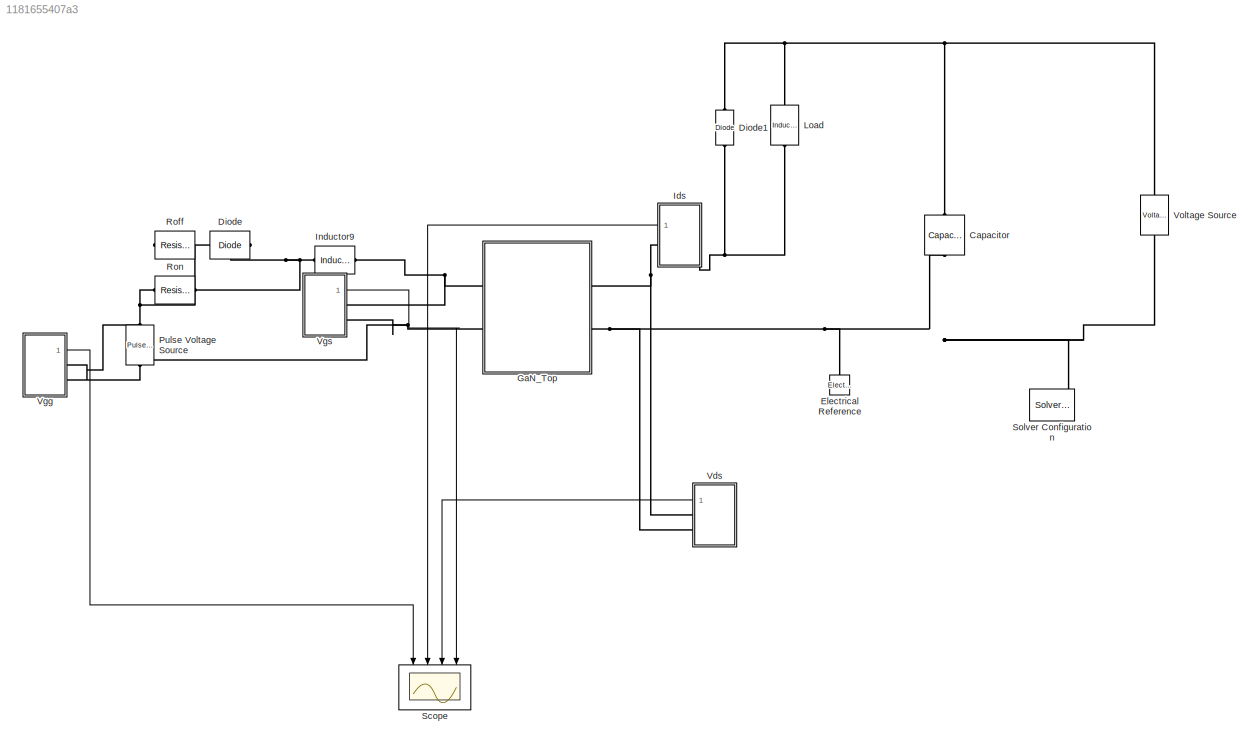
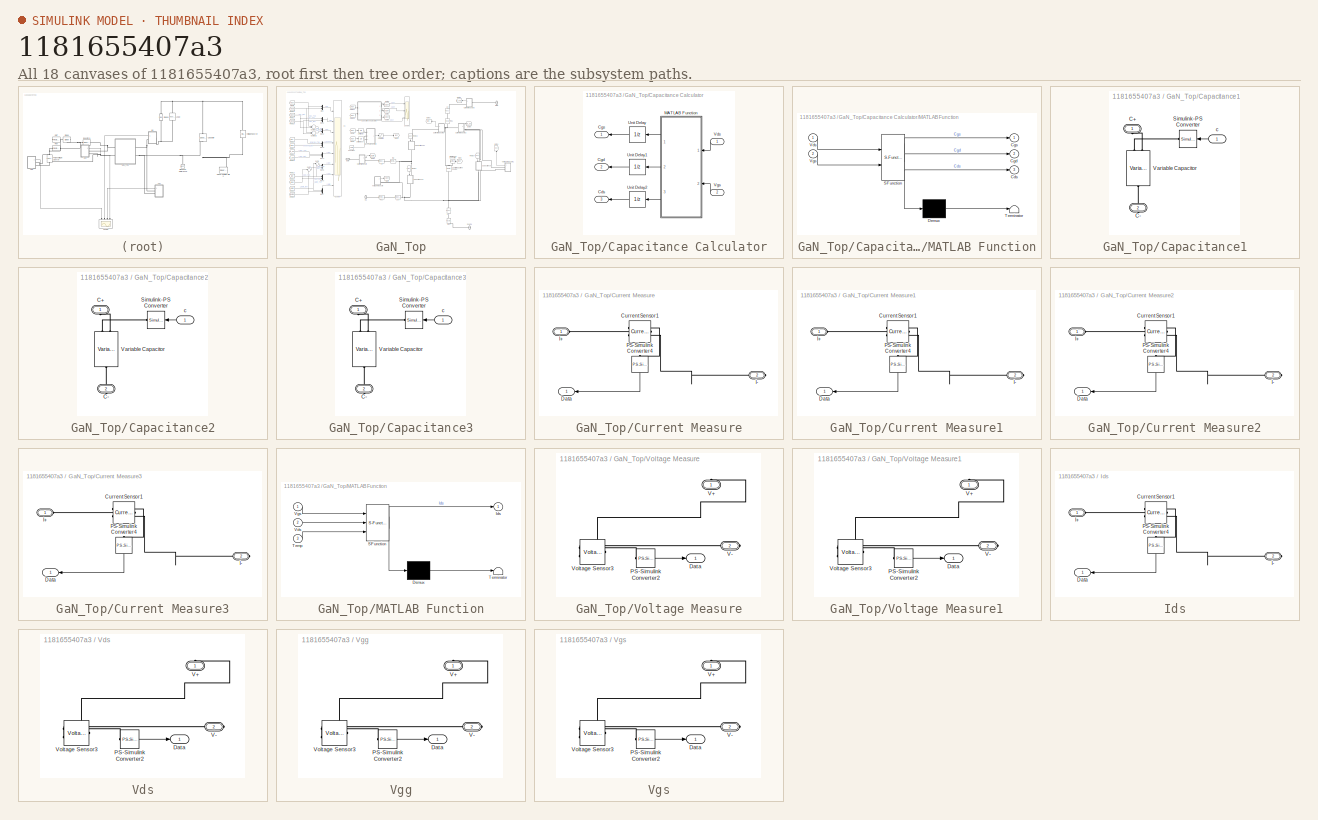
[diagram: thumbnail index - all 18 canvases of the model, root first then tree order]
MODEL slx_1181655407a3
KIND model
CONFIG AbsTol = auto
CONFIG FixedStep = 5e-13
CONFIG MaxStep = auto
CONFIG MinStep = auto
CONFIG RelTol = 1e-3
CONFIG SampleTimeConstraint = Unconstrained
CONFIG Solver = FixedStepAuto
CONFIG SolverMode = Auto
CONFIG SolverName = FixedStepAuto
CONFIG StartTime = 0.0
CONFIG StopTime = 1.5e-6
BLOCK [Reference] Capacitor  REF=elec_lib/Passive Devices/Capacitor
  Ports = [0, 0, 0, 0, 0, 1, 1]
  SourceBlock = elec_lib/Passive Devices/Capacitor
  SourceType = Capacitor
BLOCK [Reference] Diode  REF=elec_lib/Semiconductor
Devices/Diode
  Ports = [0, 0, 0, 0, 0, 1, 1]
  SourceBlock = elec_lib/Semiconductor\nDevices/Diode
  SourceType = Diode
BLOCK [Reference] Diode1  REF=elec_lib/Semiconductor
Devices/Diode
  Ports = [0, 0, 0, 0, 0, 1, 1]
  SourceBlock = elec_lib/Semiconductor\nDevices/Diode
  SourceType = Diode
BLOCK [Reference] Electrical Reference  REF=fl_lib/Electrical/Electrical Elements/Electrical Reference
  Ports = [0, 0, 0, 0, 0, 1]
  SourceBlock = fl_lib/Electrical/Electrical Elements/Electrical Reference
  SourceType = Electrical Reference
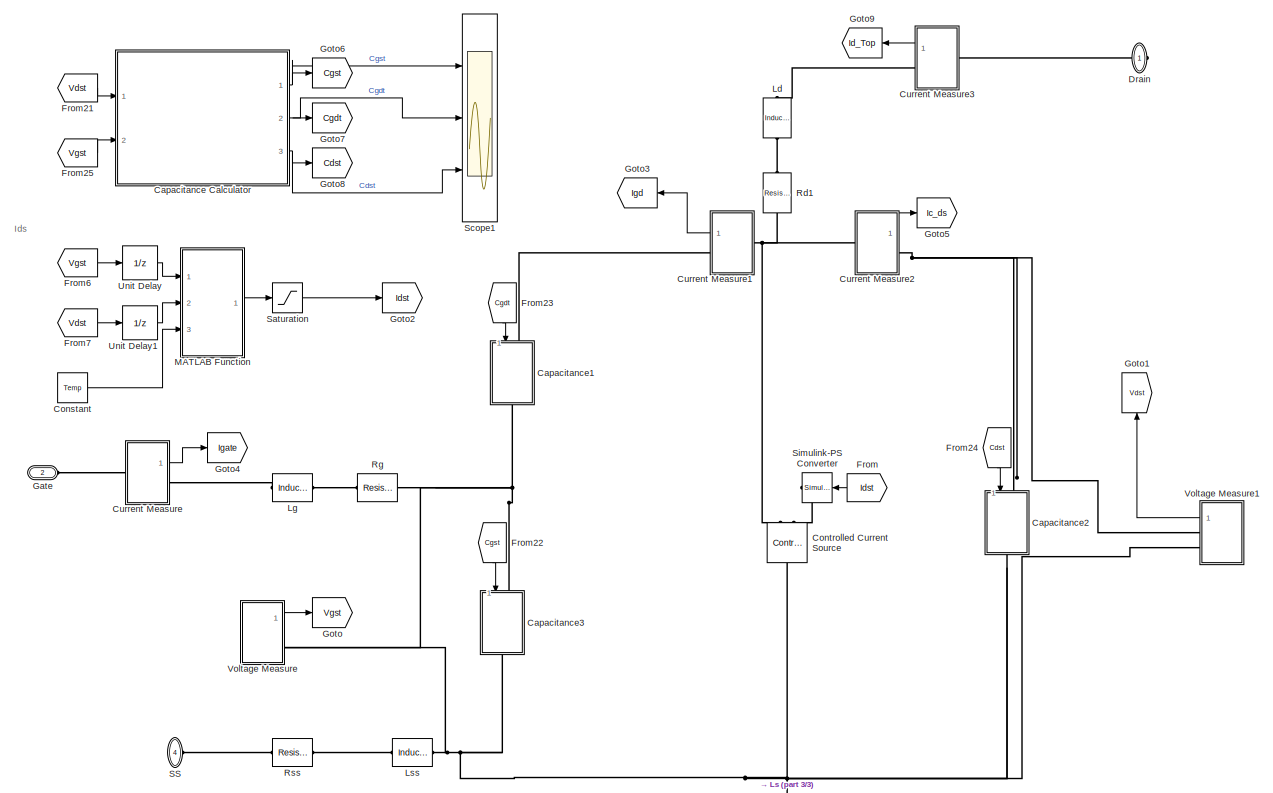
[diagram: GaN_Top - part 1/3, most of the canvas]
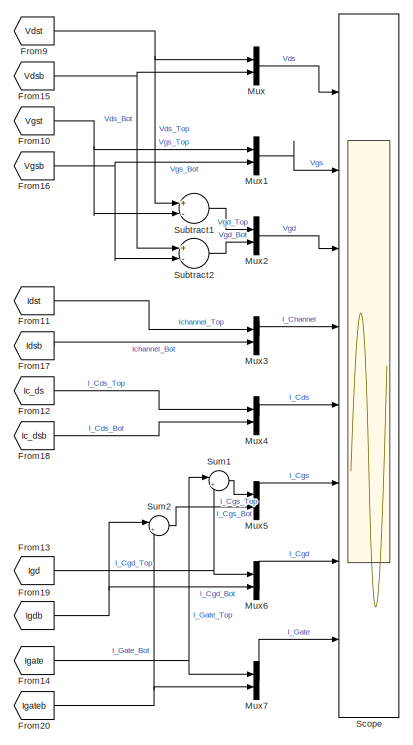
[diagram: GaN_Top - part 2/3, middle left region]
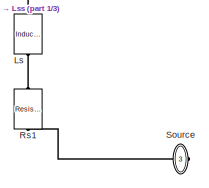
[diagram: GaN_Top - part 3/3, bottom right region]
BLOCK [SubSystem] GaN_Top
  Ports = [0, 0, 0, 0, 0, 2, 2]
  RequestExecContextInheritance = off
  Variant = off
BLOCK [SubSystem] GaN_Top/Capacitance Calculator
  Ports = [2, 3]
  RequestExecContextInheritance = off
  Variant = off
BLOCK [Outport] GaN_Top/Capacitance Calculator/Cds
  IconDisplay = Port number
  Port = 3
BLOCK [Outport] GaN_Top/Capacitance Calculator/Cgd
  IconDisplay = Port number
  Port = 2
BLOCK [Outport] GaN_Top/Capacitance Calculator/Cgs
  IconDisplay = Port number
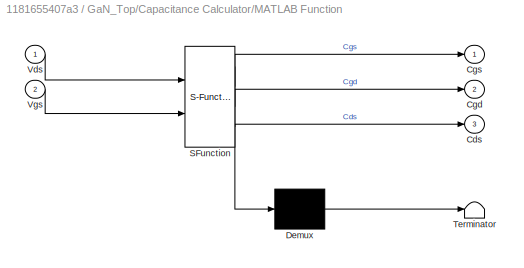
BLOCK [SubSystem] GaN_Top/Capacitance Calculator/MATLAB Function
  ErrorFcn = Stateflow.Translate.translate
  PermitHierarchicalResolution = ExplicitOnly
  Ports = [2, 3]
  RequestExecContextInheritance = off
  SFBlockType = MATLAB Function
  TreatAsAtomicUnit = on
  Variant = off
BLOCK [Demux] GaN_Top/Capacitance Calculator/MATLAB Function/ Demux 
  Outputs = 1
  Ports = [1, 1]
BLOCK [S-Function] GaN_Top/Capacitance Calculator/MATLAB Function/ SFunction 
  EnableBusSupport = on
  FunctionName = sf_sfun
  PortCounts = [2 4]
  Ports = [2, 4]
  SFunctionDeploymentMode = off
  Tag = Stateflow S-Function DoublePulseTest 3
BLOCK [Terminator] GaN_Top/Capacitance Calculator/MATLAB Function/ Terminator 
BLOCK [Outport] GaN_Top/Capacitance Calculator/MATLAB Function/Cds
  IconDisplay = Port number
  Port = 3
BLOCK [Outport] GaN_Top/Capacitance Calculator/MATLAB Function/Cgd
  IconDisplay = Port number
  Port = 2
BLOCK [Outport] GaN_Top/Capacitance Calculator/MATLAB Function/Cgs
  IconDisplay = Port number
BLOCK [Inport] GaN_Top/Capacitance Calculator/MATLAB Function/Vds
  IconDisplay = Port number
BLOCK [Inport] GaN_Top/Capacitance Calculator/MATLAB Function/Vgs
  IconDisplay = Port number
  Port = 2
BLOCK [UnitDelay] GaN_Top/Capacitance Calculator/Unit Delay
  InitialCondition = 258e-12
  InputProcessing = Elements as channels (sample based)
  SampleTime = -1
BLOCK [UnitDelay] GaN_Top/Capacitance Calculator/Unit Delay1
  InitialCondition = 63e-12
  InputProcessing = Elements as channels (sample based)
  SampleTime = -1
BLOCK [UnitDelay] GaN_Top/Capacitance Calculator/Unit Delay2
  InitialCondition = 2e-12
  InputProcessing = Elements as channels (sample based)
  SampleTime = -1
BLOCK [Inport] GaN_Top/Capacitance Calculator/Vds
  IconDisplay = Port number
BLOCK [Inport] GaN_Top/Capacitance Calculator/Vgs
  IconDisplay = Port number
  Port = 2
BLOCK [SubSystem] GaN_Top/Capacitance1
  Ports = [1, 0, 0, 0, 0, 1, 1]
  RequestExecContextInheritance = off
  Variant = off
BLOCK [PMIOPort] GaN_Top/Capacitance1/C+
  Port = 1
  Side = Left
BLOCK [PMIOPort] GaN_Top/Capacitance1/C-
  Port = 2
  Side = Right
BLOCK [Reference] GaN_Top/Capacitance1/Simulink-PS Converter  REF=nesl_utility/Simulink-PS
Converter
  Ports = [1, 0, 0, 0, 0, 0, 1]
  SourceBlock = nesl_utility/Simulink-PS\nConverter
  SourceType = Simulink-PS\nConverter
BLOCK [Reference] GaN_Top/Capacitance1/Variable Capacitor  REF=elec_lib/Passive Devices/Variable Capacitor
  Ports = [0, 0, 0, 0, 0, 2, 1]
  SourceBlock = elec_lib/Passive Devices/Variable Capacitor
  SourceType = Variable Capacitor
BLOCK [Inport] GaN_Top/Capacitance1/c
  IconDisplay = Port number
BLOCK [SubSystem] GaN_Top/Capacitance2
  Ports = [1, 0, 0, 0, 0, 1, 1]
  RequestExecContextInheritance = off
  Variant = off
BLOCK [PMIOPort] GaN_Top/Capacitance2/C+
  Port = 1
  Side = Left
BLOCK [PMIOPort] GaN_Top/Capacitance2/C-
  Port = 2
  Side = Right
BLOCK [Reference] GaN_Top/Capacitance2/Simulink-PS Converter  REF=nesl_utility/Simulink-PS
Converter
  Ports = [1, 0, 0, 0, 0, 0, 1]
  SourceBlock = nesl_utility/Simulink-PS\nConverter
  SourceType = Simulink-PS\nConverter
BLOCK [Reference] GaN_Top/Capacitance2/Variable Capacitor  REF=elec_lib/Passive Devices/Variable Capacitor
  Ports = [0, 0, 0, 0, 0, 2, 1]
  SourceBlock = elec_lib/Passive Devices/Variable Capacitor
  SourceType = Variable Capacitor
BLOCK [Inport] GaN_Top/Capacitance2/c
  IconDisplay = Port number
BLOCK [SubSystem] GaN_Top/Capacitance3
  Ports = [1, 0, 0, 0, 0, 1, 1]
  RequestExecContextInheritance = off
  Variant = off
BLOCK [PMIOPort] GaN_Top/Capacitance3/C+
  Port = 1
  Side = Left
BLOCK [PMIOPort] GaN_Top/Capacitance3/C-
  Port = 2
  Side = Right
BLOCK [Reference] GaN_Top/Capacitance3/Simulink-PS Converter  REF=nesl_utility/Simulink-PS
Converter
  Ports = [1, 0, 0, 0, 0, 0, 1]
  SourceBlock = nesl_utility/Simulink-PS\nConverter
  SourceType = Simulink-PS\nConverter
BLOCK [Reference] GaN_Top/Capacitance3/Variable Capacitor  REF=elec_lib/Passive Devices/Variable Capacitor
  Ports = [0, 0, 0, 0, 0, 2, 1]
  SourceBlock = elec_lib/Passive Devices/Variable Capacitor
  SourceType = Variable Capacitor
BLOCK [Inport] GaN_Top/Capacitance3/c
  IconDisplay = Port number
BLOCK [Constant] GaN_Top/Constant
  Value = Temp
BLOCK [Reference] GaN_Top/Controlled Current Source  REF=fl_lib/Electrical/Electrical Sources/Controlled Current
Source
  Ports = [0, 0, 0, 0, 0, 1, 2]
  SourceBlock = fl_lib/Electrical/Electrical Sources/Controlled Current\nSource
  SourceType = Controlled Current\nSource
BLOCK [SubSystem] GaN_Top/Current Measure
  Ports = [0, 1, 0, 0, 0, 1, 1]
  RequestExecContextInheritance = off
  Variant = off
BLOCK [Reference] GaN_Top/Current Measure/Current Sensor1  REF=fl_lib/Electrical/Electrical Sensors/Current Sensor
  Ports = [0, 0, 0, 0, 0, 1, 2]
  SourceBlock = fl_lib/Electrical/Electrical Sensors/Current Sensor
  SourceType = Current Sensor
BLOCK [Outport] GaN_Top/Current Measure/Data
  IconDisplay = Port number
BLOCK [PMIOPort] GaN_Top/Current Measure/I+
  Port = 1
  Side = Left
BLOCK [PMIOPort] GaN_Top/Current Measure/I-
  Port = 2
  Side = Right
BLOCK [Reference] GaN_Top/Current Measure/PS-Simulink Converter4  REF=nesl_utility/PS-Simulink
Converter
  Ports = [0, 1, 0, 0, 0, 1]
  SourceBlock = nesl_utility/PS-Simulink\nConverter
  SourceType = PS-Simulink\nConverter
BLOCK [SubSystem] GaN_Top/Current Measure1
  Ports = [0, 1, 0, 0, 0, 1, 1]
  RequestExecContextInheritance = off
  Variant = off
BLOCK [Reference] GaN_Top/Current Measure1/Current Sensor1  REF=fl_lib/Electrical/Electrical Sensors/Current Sensor
  Ports = [0, 0, 0, 0, 0, 1, 2]
  SourceBlock = fl_lib/Electrical/Electrical Sensors/Current Sensor
  SourceType = Current Sensor
BLOCK [Outport] GaN_Top/Current Measure1/Data
  IconDisplay = Port number
BLOCK [PMIOPort] GaN_Top/Current Measure1/I+
  Port = 1
  Side = Left
BLOCK [PMIOPort] GaN_Top/Current Measure1/I-
  Port = 2
  Side = Right
BLOCK [Reference] GaN_Top/Current Measure1/PS-Simulink Converter4  REF=nesl_utility/PS-Simulink
Converter
  Ports = [0, 1, 0, 0, 0, 1]
  SourceBlock = nesl_utility/PS-Simulink\nConverter
  SourceType = PS-Simulink\nConverter
BLOCK [SubSystem] GaN_Top/Current Measure2
  Ports = [0, 1, 0, 0, 0, 1, 1]
  RequestExecContextInheritance = off
  Variant = off
BLOCK [Reference] GaN_Top/Current Measure2/Current Sensor1  REF=fl_lib/Electrical/Electrical Sensors/Current Sensor
  Ports = [0, 0, 0, 0, 0, 1, 2]
  SourceBlock = fl_lib/Electrical/Electrical Sensors/Current Sensor
  SourceType = Current Sensor
BLOCK [Outport] GaN_Top/Current Measure2/Data
  IconDisplay = Port number
BLOCK [PMIOPort] GaN_Top/Current Measure2/I+
  Port = 1
  Side = Left
BLOCK [PMIOPort] GaN_Top/Current Measure2/I-
  Port = 2
  Side = Right
BLOCK [Reference] GaN_Top/Current Measure2/PS-Simulink Converter4  REF=nesl_utility/PS-Simulink
Converter
  Ports = [0, 1, 0, 0, 0, 1]
  SourceBlock = nesl_utility/PS-Simulink\nConverter
  SourceType = PS-Simulink\nConverter
BLOCK [SubSystem] GaN_Top/Current Measure3
  Ports = [0, 1, 0, 0, 0, 1, 1]
  RequestExecContextInheritance = off
  Variant = off
BLOCK [Reference] GaN_Top/Current Measure3/Current Sensor1  REF=fl_lib/Electrical/Electrical Sensors/Current Sensor
  Ports = [0, 0, 0, 0, 0, 1, 2]
  SourceBlock = fl_lib/Electrical/Electrical Sensors/Current Sensor
  SourceType = Current Sensor
BLOCK [Outport] GaN_Top/Current Measure3/Data
  IconDisplay = Port number
BLOCK [PMIOPort] GaN_Top/Current Measure3/I+
  Port = 1
  Side = Left
BLOCK [PMIOPort] GaN_Top/Current Measure3/I-
  Port = 2
  Side = Right
BLOCK [Reference] GaN_Top/Current Measure3/PS-Simulink Converter4  REF=nesl_utility/PS-Simulink
Converter
  Ports = [0, 1, 0, 0, 0, 1]
  SourceBlock = nesl_utility/PS-Simulink\nConverter
  SourceType = PS-Simulink\nConverter
BLOCK [PMIOPort] GaN_Top/Drain
  Port = 1
  Side = Right
BLOCK [From] GaN_Top/From
  GotoTag = Idst
  TagVisibility = global
BLOCK [From] GaN_Top/From10
  GotoTag = Vgst
  TagVisibility = global
BLOCK [From] GaN_Top/From11
  GotoTag = Idst
  TagVisibility = global
BLOCK [From] GaN_Top/From12
  GotoTag = Ic_ds
BLOCK [From] GaN_Top/From13
  GotoTag = Igd
BLOCK [From] GaN_Top/From14
  GotoTag = Igate
BLOCK [From] GaN_Top/From15
  GotoTag = Vdsb
BLOCK [From] GaN_Top/From16
  GotoTag = Vgsb
BLOCK [From] GaN_Top/From17
  GotoTag = Idsb
BLOCK [From] GaN_Top/From18
  GotoTag = Ic_dsb
BLOCK [From] GaN_Top/From19
  GotoTag = Igdb
BLOCK [From] GaN_Top/From20
  GotoTag = Igateb
BLOCK [From] GaN_Top/From21
  GotoTag = Vdst
  TagVisibility = global
BLOCK [From] GaN_Top/From22
  GotoTag = Cgst
BLOCK [From] GaN_Top/From23
  GotoTag = Cgdt
BLOCK [From] GaN_Top/From24
  GotoTag = Cdst
BLOCK [From] GaN_Top/From25
  GotoTag = Vgst
  TagVisibility = global
BLOCK [From] GaN_Top/From6
  GotoTag = Vgst
  TagVisibility = global
BLOCK [From] GaN_Top/From7
  GotoTag = Vdst
  TagVisibility = global
BLOCK [From] GaN_Top/From9
  GotoTag = Vdst
  TagVisibility = global
BLOCK [PMIOPort] GaN_Top/Gate
  Port = 2
  Side = Left
BLOCK [Goto] GaN_Top/Goto
  GotoTag = Vgst
  TagVisibility = global
BLOCK [Goto] GaN_Top/Goto1
  GotoTag = Vdst
  TagVisibility = global
BLOCK [Goto] GaN_Top/Goto2
  GotoTag = Idst
  TagVisibility = global
BLOCK [Goto] GaN_Top/Goto3
  GotoTag = Igd
BLOCK [Goto] GaN_Top/Goto4
  GotoTag = Igate
BLOCK [Goto] GaN_Top/Goto5
  GotoTag = Ic_ds
BLOCK [Goto] GaN_Top/Goto6
  GotoTag = Cgst
BLOCK [Goto] GaN_Top/Goto7
  GotoTag = Cgdt
BLOCK [Goto] GaN_Top/Goto8
  GotoTag = Cdst
BLOCK [Goto] GaN_Top/Goto9
  GotoTag = Id_Top
BLOCK [Reference] GaN_Top/Ld  REF=elec_lib/Passive Devices/Inductor
  Ports = [0, 0, 0, 0, 0, 1, 1]
  SourceBlock = elec_lib/Passive Devices/Inductor
  SourceType = Inductor
BLOCK [Reference] GaN_Top/Lg  REF=elec_lib/Passive Devices/Inductor
  Ports = [0, 0, 0, 0, 0, 1, 1]
  SourceBlock = elec_lib/Passive Devices/Inductor
  SourceType = Inductor
BLOCK [Reference] GaN_Top/Ls  REF=elec_lib/Passive Devices/Inductor
  Ports = [0, 0, 0, 0, 0, 1, 1]
  SourceBlock = elec_lib/Passive Devices/Inductor
  SourceType = Inductor
BLOCK [Reference] GaN_Top/Lss  REF=elec_lib/Passive Devices/Inductor
  Ports = [0, 0, 0, 0, 0, 1, 1]
  SourceBlock = elec_lib/Passive Devices/Inductor
  SourceType = Inductor
BLOCK [SubSystem] GaN_Top/MATLAB Function
  ErrorFcn = Stateflow.Translate.translate
  PermitHierarchicalResolution = ExplicitOnly
  Ports = [3, 1]
  RequestExecContextInheritance = off
  SFBlockType = MATLAB Function
  TreatAsAtomicUnit = on
  Variant = off
BLOCK [Demux] GaN_Top/MATLAB Function/ Demux 
  Outputs = 1
  Ports = [1, 1]
BLOCK [S-Function] GaN_Top/MATLAB Function/ SFunction 
  EnableBusSupport = on
  FunctionName = sf_sfun
  PortCounts = [3 2]
  Ports = [3, 2]
  SFunctionDeploymentMode = off
  Tag = Stateflow S-Function DoublePulseTest 2
BLOCK [Terminator] GaN_Top/MATLAB Function/ Terminator 
BLOCK [Outport] GaN_Top/MATLAB Function/Ids
  IconDisplay = Port number
BLOCK [Inport] GaN_Top/MATLAB Function/Temp
  IconDisplay = Port number
  Port = 3
BLOCK [Inport] GaN_Top/MATLAB Function/Vds
  IconDisplay = Port number
  Port = 2
BLOCK [Inport] GaN_Top/MATLAB Function/Vgs
  IconDisplay = Port number
BLOCK [Mux] GaN_Top/Mux
  DisplayOption = bar
  Inputs = 2
  Ports = [2, 1]
BLOCK [Mux] GaN_Top/Mux1
  DisplayOption = bar
  Inputs = 2
  Ports = [2, 1]
BLOCK [Mux] GaN_Top/Mux2
  DisplayOption = bar
  Inputs = 2
  Ports = [2, 1]
BLOCK [Mux] GaN_Top/Mux3
  DisplayOption = bar
  Inputs = 2
  Ports = [2, 1]
BLOCK [Mux] GaN_Top/Mux4
  DisplayOption = bar
  Inputs = 2
  Ports = [2, 1]
BLOCK [Mux] GaN_Top/Mux5
  DisplayOption = bar
  Inputs = 2
  Ports = [2, 1]
BLOCK [Mux] GaN_Top/Mux6
  DisplayOption = bar
  Inputs = 2
  Ports = [2, 1]
BLOCK [Mux] GaN_Top/Mux7
  DisplayOption = bar
  Inputs = 2
  Ports = [2, 1]
BLOCK [Reference] GaN_Top/Rd1  REF=elec_lib/Passive Devices/Resistor
  Ports = [0, 0, 0, 0, 0, 1, 1]
  SourceBlock = elec_lib/Passive Devices/Resistor
  SourceType = Resistor
BLOCK [Reference] GaN_Top/Rg  REF=elec_lib/Passive Devices/Resistor
  Ports = [0, 0, 0, 0, 0, 1, 1]
  SourceBlock = elec_lib/Passive Devices/Resistor
  SourceType = Resistor
BLOCK [Reference] GaN_Top/Rs1  REF=elec_lib/Passive Devices/Resistor
  Ports = [0, 0, 0, 0, 0, 1, 1]
  SourceBlock = elec_lib/Passive Devices/Resistor
  SourceType = Resistor
BLOCK [Reference] GaN_Top/Rss  REF=elec_lib/Passive Devices/Resistor
  Ports = [0, 0, 0, 0, 0, 1, 1]
  SourceBlock = elec_lib/Passive Devices/Resistor
  SourceType = Resistor
BLOCK [PMIOPort] GaN_Top/SS
  Port = 4
  Side = Left
BLOCK [Saturate] GaN_Top/Saturation
  InputPortMap = u0
  LowerLimit = -200
  Ports = [1, 1]
  UpperLimit = 200
BLOCK [Scope] GaN_Top/Scope
  NumInputPorts = 8
  Ports = [8]
  ScopeSpecificationString = Simulink.scopes.TimeScopeBlockCfg('CurrentConfiguration', extmgr.ConfigurationSet(extmgr.Configuration('Core','General UI',true,'FigureColor',[0 0 0]),extmgr.Configuration('Core','Source UI',true),extmgr.Configuration('Sources','WiredSimulink',true,'DataLoggingVariableName','ScopeData2'),extmgr.Configuration('Visuals','Time Domain',true,'SerializedDisplays',{struct('MinYLimReal','-71.63388','MaxYL...<+6043ch>
BLOCK [Scope] GaN_Top/Scope1
  NumInputPorts = 3
  Ports = [3]
  ScopeSpecificationString = Simulink.scopes.TimeScopeBlockCfg('CurrentConfiguration', extmgr.ConfigurationSet(extmgr.Configuration('Core','General UI',true),extmgr.Configuration('Core','Source UI',true),extmgr.Configuration('Sources','WiredSimulink',true,'DataLoggingVariableName','ScopeData1'),extmgr.Configuration('Visuals','Time Domain',true,'SerializedDisplays',{struct('MinYLimReal','-10.60661','MaxYLimReal','95.45946','YL...<+3156ch>
BLOCK [Reference] GaN_Top/Simulink-PS Converter  REF=nesl_utility/Simulink-PS
Converter
  Ports = [1, 0, 0, 0, 0, 0, 1]
  SourceBlock = nesl_utility/Simulink-PS\nConverter
  SourceType = Simulink-PS\nConverter
BLOCK [PMIOPort] GaN_Top/Source
  Port = 3
  Side = Right
BLOCK [Sum] GaN_Top/Subtract1
  InputSameDT = off
  Inputs = +-
  OutDataTypeStr = Inherit: Inherit via internal rule
  Ports = [2, 1]
  SaturateOnIntegerOverflow = off
BLOCK [Sum] GaN_Top/Subtract2
  InputSameDT = off
  Inputs = +-
  OutDataTypeStr = Inherit: Inherit via internal rule
  Ports = [2, 1]
  SaturateOnIntegerOverflow = off
BLOCK [Sum] GaN_Top/Sum1
  IconShape = round
  InputSameDT = off
  Inputs = |++
  OutDataTypeStr = Inherit: Inherit via internal rule
  Ports = [2, 1]
  SaturateOnIntegerOverflow = off
BLOCK [Sum] GaN_Top/Sum2
  IconShape = round
  InputSameDT = off
  Inputs = |++
  OutDataTypeStr = Inherit: Inherit via internal rule
  Ports = [2, 1]
  SaturateOnIntegerOverflow = off
BLOCK [UnitDelay] GaN_Top/Unit Delay
  InputProcessing = Elements as channels (sample based)
  SampleTime = -1
BLOCK [UnitDelay] GaN_Top/Unit Delay1
  InputProcessing = Elements as channels (sample based)
  SampleTime = -1
BLOCK [SubSystem] GaN_Top/Voltage Measure
  Ports = [0, 1, 0, 0, 0, 0, 2]
  RequestExecContextInheritance = off
  Variant = off
BLOCK [Outport] GaN_Top/Voltage Measure/Data
  IconDisplay = Port number
BLOCK [Reference] GaN_Top/Voltage Measure/PS-Simulink Converter2  REF=nesl_utility/PS-Simulink
Converter
  Ports = [0, 1, 0, 0, 0, 1]
  SourceBlock = nesl_utility/PS-Simulink\nConverter
  SourceType = PS-Simulink\nConverter
BLOCK [PMIOPort] GaN_Top/Voltage Measure/V+
  Port = 1
  Side = Right
BLOCK [PMIOPort] GaN_Top/Voltage Measure/V-
  Port = 2
  Side = Right
BLOCK [Reference] GaN_Top/Voltage Measure/Voltage Sensor3  REF=fl_lib/Electrical/Electrical Sensors/Voltage Sensor
  Ports = [0, 0, 0, 0, 0, 1, 2]
  SourceBlock = fl_lib/Electrical/Electrical Sensors/Voltage Sensor
  SourceType = Voltage Sensor
BLOCK [SubSystem] GaN_Top/Voltage Measure1
  Ports = [0, 1, 0, 0, 0, 0, 2]
  RequestExecContextInheritance = off
  Variant = off
BLOCK [Outport] GaN_Top/Voltage Measure1/Data
  IconDisplay = Port number
BLOCK [Reference] GaN_Top/Voltage Measure1/PS-Simulink Converter2  REF=nesl_utility/PS-Simulink
Converter
  Ports = [0, 1, 0, 0, 0, 1]
  SourceBlock = nesl_utility/PS-Simulink\nConverter
  SourceType = PS-Simulink\nConverter
BLOCK [PMIOPort] GaN_Top/Voltage Measure1/V+
  Port = 1
  Side = Right
BLOCK [PMIOPort] GaN_Top/Voltage Measure1/V-
  Port = 2
  Side = Right
BLOCK [Reference] GaN_Top/Voltage Measure1/Voltage Sensor3  REF=fl_lib/Electrical/Electrical Sensors/Voltage Sensor
  Ports = [0, 0, 0, 0, 0, 1, 2]
  SourceBlock = fl_lib/Electrical/Electrical Sensors/Voltage Sensor
  SourceType = Voltage Sensor
BLOCK [SubSystem] Ids
  Ports = [0, 1, 0, 0, 0, 1, 1]
  RequestExecContextInheritance = off
  Variant = off
BLOCK [Reference] Ids/Current Sensor1  REF=fl_lib/Electrical/Electrical Sensors/Current Sensor
  Ports = [0, 0, 0, 0, 0, 1, 2]
  SourceBlock = fl_lib/Electrical/Electrical Sensors/Current Sensor
  SourceType = Current Sensor
BLOCK [Outport] Ids/Data
  IconDisplay = Port number
BLOCK [PMIOPort] Ids/I+
  Port = 1
  Side = Left
BLOCK [PMIOPort] Ids/I-
  Port = 2
  Side = Right
BLOCK [Reference] Ids/PS-Simulink Converter4  REF=nesl_utility/PS-Simulink
Converter
  Ports = [0, 1, 0, 0, 0, 1]
  SourceBlock = nesl_utility/PS-Simulink\nConverter
  SourceType = PS-Simulink\nConverter
BLOCK [Reference] Inductor9  REF=elec_lib/Passive Devices/Inductor
  Ports = [0, 0, 0, 0, 0, 1, 1]
  SourceBlock = elec_lib/Passive Devices/Inductor
  SourceType = Inductor
BLOCK [Reference] Load  REF=elec_lib/Passive Devices/Inductor
  Ports = [0, 0, 0, 0, 0, 1, 1]
  SourceBlock = elec_lib/Passive Devices/Inductor
  SourceType = Inductor
BLOCK [Reference] Pulse Voltage Source  REF=elec_lib/Additional
Components/SPICE-Compatible
Components/Sources/Pulse Voltage Source
  Ports = [0, 0, 0, 0, 0, 1, 1]
  SourceBlock = elec_lib/Additional\nComponents/SPICE-Compatible\nComponents/Sources/Pulse Voltage Source
  SourceType = Pulse Voltage Source
BLOCK [Reference] Roff  REF=elec_lib/Passive Devices/Resistor
  Ports = [0, 0, 0, 0, 0, 1, 1]
  SourceBlock = elec_lib/Passive Devices/Resistor
  SourceType = Resistor
BLOCK [Reference] Ron  REF=elec_lib/Passive Devices/Resistor
  Ports = [0, 0, 0, 0, 0, 1, 1]
  SourceBlock = elec_lib/Passive Devices/Resistor
  SourceType = Resistor
BLOCK [Scope] Scope
  NumInputPorts = 4
  Ports = [4]
  ScopeSpecificationString = Simulink.scopes.TimeScopeBlockCfg('CurrentConfiguration', extmgr.ConfigurationSet(extmgr.Configuration('Core','General UI',true,'FigureColor',[0 0 0]),extmgr.Configuration('Core','Source UI',true),extmgr.Configuration('Sources','WiredSimulink',true,'DataLoggingVariableName','ScopeData1'),extmgr.Configuration('Visuals','Time Domain',true,'SerializedDisplays',{struct('MinYLimReal','-4.125','MaxYLimR...<+3524ch>
BLOCK [Reference] Solver Configuration  REF=nesl_utility/Solver
Configuration
  Ports = [0, 0, 0, 0, 0, 0, 1]
  SourceBlock = nesl_utility/Solver\nConfiguration
  SourceType = Solver\nConfiguration
BLOCK [SubSystem] Vds
  Ports = [0, 1, 0, 0, 0, 0, 2]
  RequestExecContextInheritance = off
  Variant = off
BLOCK [Outport] Vds/Data
  IconDisplay = Port number
BLOCK [Reference] Vds/PS-Simulink Converter2  REF=nesl_utility/PS-Simulink
Converter
  Ports = [0, 1, 0, 0, 0, 1]
  SourceBlock = nesl_utility/PS-Simulink\nConverter
  SourceType = PS-Simulink\nConverter
BLOCK [PMIOPort] Vds/V+
  Port = 1
  Side = Right
BLOCK [PMIOPort] Vds/V-
  Port = 2
  Side = Right
BLOCK [Reference] Vds/Voltage Sensor3  REF=fl_lib/Electrical/Electrical Sensors/Voltage Sensor
  Ports = [0, 0, 0, 0, 0, 1, 2]
  SourceBlock = fl_lib/Electrical/Electrical Sensors/Voltage Sensor
  SourceType = Voltage Sensor
BLOCK [SubSystem] Vgg
  Ports = [0, 1, 0, 0, 0, 0, 2]
  RequestExecContextInheritance = off
  Variant = off
BLOCK [Outport] Vgg/Data
  IconDisplay = Port number
BLOCK [Reference] Vgg/PS-Simulink Converter2  REF=nesl_utility/PS-Simulink
Converter
  Ports = [0, 1, 0, 0, 0, 1]
  SourceBlock = nesl_utility/PS-Simulink\nConverter
  SourceType = PS-Simulink\nConverter
BLOCK [PMIOPort] Vgg/V+
  Port = 1
  Side = Right
BLOCK [PMIOPort] Vgg/V-
  Port = 2
  Side = Right
BLOCK [Reference] Vgg/Voltage Sensor3  REF=fl_lib/Electrical/Electrical Sensors/Voltage Sensor
  Ports = [0, 0, 0, 0, 0, 1, 2]
  SourceBlock = fl_lib/Electrical/Electrical Sensors/Voltage Sensor
  SourceType = Voltage Sensor
BLOCK [SubSystem] Vgs
  Ports = [0, 1, 0, 0, 0, 0, 2]
  RequestExecContextInheritance = off
  Variant = off
BLOCK [Outport] Vgs/Data
  IconDisplay = Port number
BLOCK [Reference] Vgs/PS-Simulink Converter2  REF=nesl_utility/PS-Simulink
Converter
  Ports = [0, 1, 0, 0, 0, 1]
  SourceBlock = nesl_utility/PS-Simulink\nConverter
  SourceType = PS-Simulink\nConverter
BLOCK [PMIOPort] Vgs/V+
  Port = 1
  Side = Right
BLOCK [PMIOPort] Vgs/V-
  Port = 2
  Side = Right
BLOCK [Reference] Vgs/Voltage Sensor3  REF=fl_lib/Electrical/Electrical Sensors/Voltage Sensor
  Ports = [0, 0, 0, 0, 0, 1, 2]
  SourceBlock = fl_lib/Electrical/Electrical Sensors/Voltage Sensor
  SourceType = Voltage Sensor
BLOCK [Reference] Voltage Source  REF=elec_lib/Sources/Voltage Source
  Ports = [0, 0, 0, 0, 0, 1, 1]
  SourceBlock = elec_lib/Sources/Voltage Source
  SourceType = Voltage Source
ANNOTATION GaN_Top: Ids
LINE GaN_Top/Capacitance Calculator/MATLAB Function:1 -> GaN_Top/Capacitance Calculator/Unit Delay:1
LINE GaN_Top/Capacitance Calculator/MATLAB Function:2 -> GaN_Top/Capacitance Calculator/Unit Delay1:1
LINE GaN_Top/Capacitance Calculator/MATLAB Function:3 -> GaN_Top/Capacitance Calculator/Unit Delay2:1
LINE GaN_Top/Capacitance Calculator/Unit Delay1:1 -> GaN_Top/Capacitance Calculator/Cgd:1
LINE GaN_Top/Capacitance Calculator/Unit Delay2:1 -> GaN_Top/Capacitance Calculator/Cds:1
LINE GaN_Top/Capacitance Calculator/Unit Delay:1 -> GaN_Top/Capacitance Calculator/Cgs:1
LINE GaN_Top/Capacitance Calculator/Vds:1 -> GaN_Top/Capacitance Calculator/MATLAB Function:1
LINE GaN_Top/Capacitance Calculator/Vgs:1 -> GaN_Top/Capacitance Calculator/MATLAB Function:2
NET GaN_Top/Capacitance Calculator:1 -> GaN_Top/Goto6:1, GaN_Top/Scope1:1
NET GaN_Top/Capacitance Calculator:2 -> GaN_Top/Goto7:1, GaN_Top/Scope1:2
NET GaN_Top/Capacitance Calculator:3 -> GaN_Top/Goto8:1, GaN_Top/Scope1:3
LINE GaN_Top/Capacitance1/c:1 -> GaN_Top/Capacitance1/Simulink-PS Converter:1
LINE GaN_Top/Capacitance2/c:1 -> GaN_Top/Capacitance2/Simulink-PS Converter:1
LINE GaN_Top/Capacitance3/c:1 -> GaN_Top/Capacitance3/Simulink-PS Converter:1
LINE GaN_Top/Constant:1 -> GaN_Top/MATLAB Function:3
LINE GaN_Top/Current Measure/PS-Simulink Converter4:1 -> GaN_Top/Current Measure/Data:1
LINE GaN_Top/Current Measure1/PS-Simulink Converter4:1 -> GaN_Top/Current Measure1/Data:1
LINE GaN_Top/Current Measure1:1 -> GaN_Top/Goto3:1
LINE GaN_Top/Current Measure2/PS-Simulink Converter4:1 -> GaN_Top/Current Measure2/Data:1
LINE GaN_Top/Current Measure2:1 -> GaN_Top/Goto5:1
LINE GaN_Top/Current Measure3/PS-Simulink Converter4:1 -> GaN_Top/Current Measure3/Data:1
LINE GaN_Top/Current Measure3:1 -> GaN_Top/Goto9:1
LINE GaN_Top/Current Measure:1 -> GaN_Top/Goto4:1
NET GaN_Top/From10:1 -> GaN_Top/Mux1:1, GaN_Top/Subtract1:2
LINE GaN_Top/From11:1 -> GaN_Top/Mux3:1
LINE GaN_Top/From12:1 -> GaN_Top/Mux4:1
NET GaN_Top/From13:1 -> GaN_Top/Mux6:1, GaN_Top/Sum1:2
NET GaN_Top/From14:1 -> GaN_Top/Mux7:1, GaN_Top/Sum1:1
NET GaN_Top/From15:1 -> GaN_Top/Mux:2, GaN_Top/Subtract2:1
NET GaN_Top/From16:1 -> GaN_Top/Mux1:2, GaN_Top/Subtract2:2
LINE GaN_Top/From17:1 -> GaN_Top/Mux3:2
LINE GaN_Top/From18:1 -> GaN_Top/Mux4:2
NET GaN_Top/From19:1 -> GaN_Top/Mux6:2, GaN_Top/Sum2:1
NET GaN_Top/From20:1 -> GaN_Top/Mux7:2, GaN_Top/Sum2:2
LINE GaN_Top/From21:1 -> GaN_Top/Capacitance Calculator:1
LINE GaN_Top/From22:1 -> GaN_Top/Capacitance3:1
LINE GaN_Top/From23:1 -> GaN_Top/Capacitance1:1
LINE GaN_Top/From24:1 -> GaN_Top/Capacitance2:1
LINE GaN_Top/From25:1 -> GaN_Top/Capacitance Calculator:2
LINE GaN_Top/From6:1 -> GaN_Top/Unit Delay:1
LINE GaN_Top/From7:1 -> GaN_Top/Unit Delay1:1
NET GaN_Top/From9:1 -> GaN_Top/Mux:1, GaN_Top/Subtract1:1
LINE GaN_Top/From:1 -> GaN_Top/Simulink-PS Converter:1
LINE GaN_Top/MATLAB Function:1 -> GaN_Top/Saturation:1
LINE GaN_Top/Mux1:1 -> GaN_Top/Scope:2
LINE GaN_Top/Mux2:1 -> GaN_Top/Scope:3
LINE GaN_Top/Mux3:1 -> GaN_Top/Scope:4
LINE GaN_Top/Mux4:1 -> GaN_Top/Scope:5
LINE GaN_Top/Mux5:1 -> GaN_Top/Scope:6
LINE GaN_Top/Mux6:1 -> GaN_Top/Scope:7
LINE GaN_Top/Mux7:1 -> GaN_Top/Scope:8
LINE GaN_Top/Mux:1 -> GaN_Top/Scope:1
LINE GaN_Top/Saturation:1 -> GaN_Top/Goto2:1
LINE GaN_Top/Subtract1:1 -> GaN_Top/Mux2:1
LINE GaN_Top/Subtract2:1 -> GaN_Top/Mux2:2
LINE GaN_Top/Sum1:1 -> GaN_Top/Mux5:1
LINE GaN_Top/Sum2:1 -> GaN_Top/Mux5:2
LINE GaN_Top/Unit Delay1:1 -> GaN_Top/MATLAB Function:2
LINE GaN_Top/Unit Delay:1 -> GaN_Top/MATLAB Function:1
LINE GaN_Top/Voltage Measure/PS-Simulink Converter2:1 -> GaN_Top/Voltage Measure/Data:1
LINE GaN_Top/Voltage Measure1/PS-Simulink Converter2:1 -> GaN_Top/Voltage Measure1/Data:1
LINE GaN_Top/Voltage Measure1:1 -> GaN_Top/Goto1:1
LINE GaN_Top/Voltage Measure:1 -> GaN_Top/Goto:1
LINE Ids/PS-Simulink Converter4:1 -> Ids/Data:1
LINE Ids:1 -> Scope:2
LINE Vds/PS-Simulink Converter2:1 -> Vds/Data:1
LINE Vds:1 -> Scope:3
LINE Vgg/PS-Simulink Converter2:1 -> Vgg/Data:1
LINE Vgg:1 -> Scope:1
LINE Vgs/PS-Simulink Converter2:1 -> Vgs/Data:1
LINE Vgs:1 -> Scope:4
PNET net1: Capacitor:LConn1 -- Diode1:RConn1 -- Load:LConn1 -- Voltage Source:LConn1
PNET net2: Capacitor:RConn1 -- Electrical Reference:LConn1 -- GaN_Top:RConn2 -- Solver Configuration:RConn1 -- Vds:RConn2 -- Voltage Source:RConn1
PNET net3: Diode1:LConn1 -- Ids:LConn1 -- Load:RConn1
PNET net4: Diode:LConn1 -- Inductor9:LConn1 -- Ron:LConn1
PLINE Diode:RConn1 -- Roff:LConn1
PLINE GaN_Top/Capacitance1/C+:RConn1 -- GaN_Top/Capacitance1/Variable Capacitor:LConn2
PLINE GaN_Top/Capacitance1/C-:RConn1 -- GaN_Top/Capacitance1/Variable Capacitor:RConn1
PLINE GaN_Top/Capacitance1/Simulink-PS Converter:RConn1 -- GaN_Top/Capacitance1/Variable Capacitor:LConn1
PLINE GaN_Top/Capacitance1:LConn1 -- GaN_Top/Current Measure1:RConn1
PNET net5: GaN_Top/Capacitance1:RConn1 -- GaN_Top/Capacitance3:LConn1 -- GaN_Top/Rg:LConn1 -- GaN_Top/Voltage Measure:RConn1
PLINE GaN_Top/Capacitance2/C+:RConn1 -- GaN_Top/Capacitance2/Variable Capacitor:LConn2
PLINE GaN_Top/Capacitance2/C-:RConn1 -- GaN_Top/Capacitance2/Variable Capacitor:RConn1
PLINE GaN_Top/Capacitance2/Simulink-PS Converter:RConn1 -- GaN_Top/Capacitance2/Variable Capacitor:LConn1
PNET net6: GaN_Top/Capacitance2:LConn1 -- GaN_Top/Current Measure2:RConn1 -- GaN_Top/Voltage Measure1:RConn1
PNET net7: GaN_Top/Capacitance2:RConn1 -- GaN_Top/Capacitance3:RConn1 -- GaN_Top/Controlled Current Source:LConn1 -- GaN_Top/Ls:LConn1 -- GaN_Top/Lss:RConn1 -- GaN_Top/Voltage Measure1:RConn2 -- GaN_Top/Voltage Measure:RConn2
PLINE GaN_Top/Capacitance3/C+:RConn1 -- GaN_Top/Capacitance3/Variable Capacitor:LConn2
PLINE GaN_Top/Capacitance3/C-:RConn1 -- GaN_Top/Capacitance3/Variable Capacitor:RConn1
PLINE GaN_Top/Capacitance3/Simulink-PS Converter:RConn1 -- GaN_Top/Capacitance3/Variable Capacitor:LConn1
PLINE GaN_Top/Controlled Current Source:RConn1 -- GaN_Top/Simulink-PS Converter:RConn1
PNET net8: GaN_Top/Controlled Current Source:RConn2 -- GaN_Top/Current Measure1:LConn1 -- GaN_Top/Current Measure2:LConn1 -- GaN_Top/Rd1:RConn1
PLINE GaN_Top/Current Measure/Current Sensor1:LConn1 -- GaN_Top/Current Measure/I+:RConn1
PLINE GaN_Top/Current Measure/Current Sensor1:RConn1 -- GaN_Top/Current Measure/PS-Simulink Converter4:LConn1
PLINE GaN_Top/Current Measure/Current Sensor1:RConn2 -- GaN_Top/Current Measure/I-:RConn1
PLINE GaN_Top/Current Measure1/Current Sensor1:LConn1 -- GaN_Top/Current Measure1/I+:RConn1
PLINE GaN_Top/Current Measure1/Current Sensor1:RConn1 -- GaN_Top/Current Measure1/PS-Simulink Converter4:LConn1
PLINE GaN_Top/Current Measure1/Current Sensor1:RConn2 -- GaN_Top/Current Measure1/I-:RConn1
PLINE GaN_Top/Current Measure2/Current Sensor1:LConn1 -- GaN_Top/Current Measure2/I+:RConn1
PLINE GaN_Top/Current Measure2/Current Sensor1:RConn1 -- GaN_Top/Current Measure2/PS-Simulink Converter4:LConn1
PLINE GaN_Top/Current Measure2/Current Sensor1:RConn2 -- GaN_Top/Current Measure2/I-:RConn1
PLINE GaN_Top/Current Measure3/Current Sensor1:LConn1 -- GaN_Top/Current Measure3/I+:RConn1
PLINE GaN_Top/Current Measure3/Current Sensor1:RConn1 -- GaN_Top/Current Measure3/PS-Simulink Converter4:LConn1
PLINE GaN_Top/Current Measure3/Current Sensor1:RConn2 -- GaN_Top/Current Measure3/I-:RConn1
PLINE GaN_Top/Current Measure3:LConn1 -- GaN_Top/Drain:RConn1
PLINE GaN_Top/Current Measure3:RConn1 -- GaN_Top/Ld:LConn1
PLINE GaN_Top/Current Measure:LConn1 -- GaN_Top/Gate:RConn1
PLINE GaN_Top/Current Measure:RConn1 -- GaN_Top/Lg:LConn1
PLINE GaN_Top/Ld:RConn1 -- GaN_Top/Rd1:LConn1
PLINE GaN_Top/Lg:RConn1 -- GaN_Top/Rg:RConn1
PLINE GaN_Top/Ls:RConn1 -- GaN_Top/Rs1:LConn1
PLINE GaN_Top/Lss:LConn1 -- GaN_Top/Rss:RConn1
PLINE GaN_Top/Rs1:RConn1 -- GaN_Top/Source:RConn1
PLINE GaN_Top/Rss:LConn1 -- GaN_Top/SS:RConn1
PLINE GaN_Top/Voltage Measure/PS-Simulink Converter2:LConn1 -- GaN_Top/Voltage Measure/Voltage Sensor3:RConn1
PLINE GaN_Top/Voltage Measure/V+:RConn1 -- GaN_Top/Voltage Measure/Voltage Sensor3:LConn1
PLINE GaN_Top/Voltage Measure/V-:RConn1 -- GaN_Top/Voltage Measure/Voltage Sensor3:RConn2
PLINE GaN_Top/Voltage Measure1/PS-Simulink Converter2:LConn1 -- GaN_Top/Voltage Measure1/Voltage Sensor3:RConn1
PLINE GaN_Top/Voltage Measure1/V+:RConn1 -- GaN_Top/Voltage Measure1/Voltage Sensor3:LConn1
PLINE GaN_Top/Voltage Measure1/V-:RConn1 -- GaN_Top/Voltage Measure1/Voltage Sensor3:RConn2
PNET net9: GaN_Top:LConn1 -- Inductor9:RConn1 -- Vgs:RConn1
PNET net10: GaN_Top:LConn2 -- Pulse Voltage Source:RConn1 -- Vgg:RConn2 -- Vgs:RConn2
PNET net11: GaN_Top:RConn1 -- Ids:RConn1 -- Vds:RConn1
PLINE Ids/Current Sensor1:LConn1 -- Ids/I+:RConn1
PLINE Ids/Current Sensor1:RConn1 -- Ids/PS-Simulink Converter4:LConn1
PLINE Ids/Current Sensor1:RConn2 -- Ids/I-:RConn1
PNET net12: Pulse Voltage Source:LConn1 -- Roff:RConn1 -- Ron:RConn1 -- Vgg:RConn1
PLINE Vds/PS-Simulink Converter2:LConn1 -- Vds/Voltage Sensor3:RConn1
PLINE Vds/V+:RConn1 -- Vds/Voltage Sensor3:LConn1
PLINE Vds/V-:RConn1 -- Vds/Voltage Sensor3:RConn2
PLINE Vgg/PS-Simulink Converter2:LConn1 -- Vgg/Voltage Sensor3:RConn1
PLINE Vgg/V+:RConn1 -- Vgg/Voltage Sensor3:LConn1
PLINE Vgg/V-:RConn1 -- Vgg/Voltage Sensor3:RConn2
PLINE Vgs/PS-Simulink Converter2:LConn1 -- Vgs/Voltage Sensor3:RConn1
PLINE Vgs/V+:RConn1 -- Vgs/Voltage Sensor3:LConn1
PLINE Vgs/V-:RConn1 -- Vgs/Voltage Sensor3:RConn2
note: NET lines group one-source signal fan-out (src -> all destinations, sorted); 1:1 wires keep LINE; PNET lines group multi-terminal physical nets as a canonical sorted terminal list (undirected conserving connections); 2-terminal nets keep the pairwise PLINE form
CHART GaN_Top/MATLAB Function states=1 transitions=1
  STATE_LABEL 'eML_blk_kernel()'
  STATE_LABEL 'SCRIPT:\nfunction Ids = fcn(Vgs,Vds,Temp)\n%#codegen\n% K1 = 0.283;\n% b1 = 2.035;\n% c1 = 0.124;\n% d1 = 1.159;\n% e1 = -0.204;\n% m1 = 30.972;\n% n1 = -4.48;\n% K2 = 7.114;\n% b2 = 2.054;\n% c2 = 0.153;\n% Vgs = 6;\n% Vds = -0.045;\nVgd = Vgs - Vds;\ncur = 4.5056641;\nK = cur * 0.8 * ((Temp - 25 + 273)/300)^(-2.7);\nx0 = 0.31 ;\nx1 = 0.255;\nslp = 2;\n\n\n% if Vds>0\n%     Ids = K1*log(1+exp((Vgs-b1)/c1))*((m1+n1*Vgs)*...<+293ch>'
CHART GaN_Top/Capacitance Calculator/MATLAB Function states=1 transitions=1
  STATE_LABEL 'eML_blk_kernel()'
  STATE_LABEL 'SCRIPT:\nfunction [Cgs,Cgd,Cds]= fcn(Vds,Vgs)\n%#codegen\n% Vdc = 400;\n% VpulseMax = 6;\n% VpulseMin = -3;\n% Vdsgs = (Vdc/(VpulseMax - VpulseMin))*(Vgs + VpulseMin);\nVds = abs(Vds);\n%% Crss calculation\n       a1 =   2.519e+14;\n       b1 =      -345.7;\n       c1 =       63.76;\n       a2 =       27.99;\n       b2 =       12.86;\n       c2 =       18.29;\n       a3 =       8.666;\n       b3 =       33.93;\n  ...<+2368ch>'
